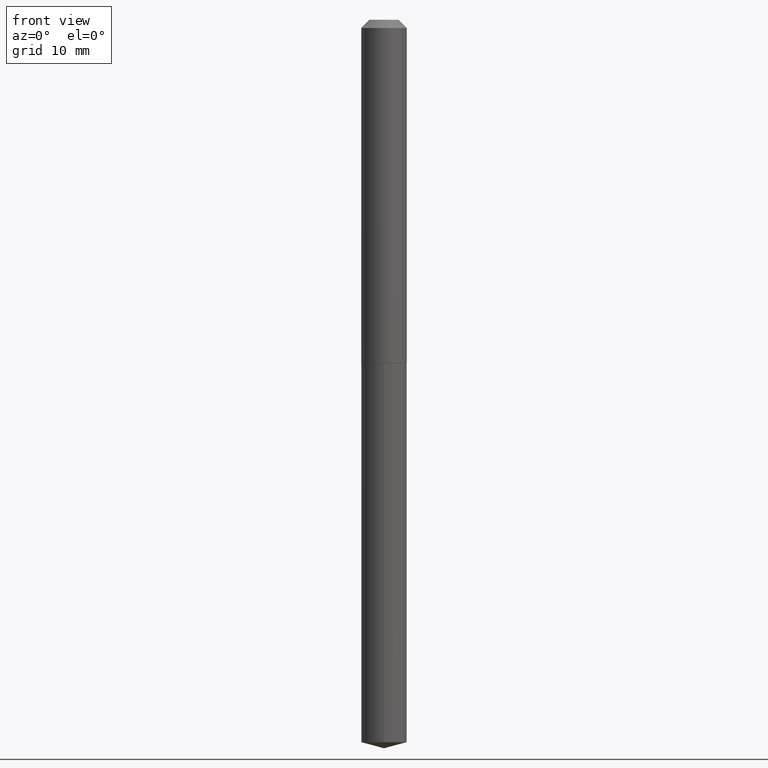
[diagram: clean part render]
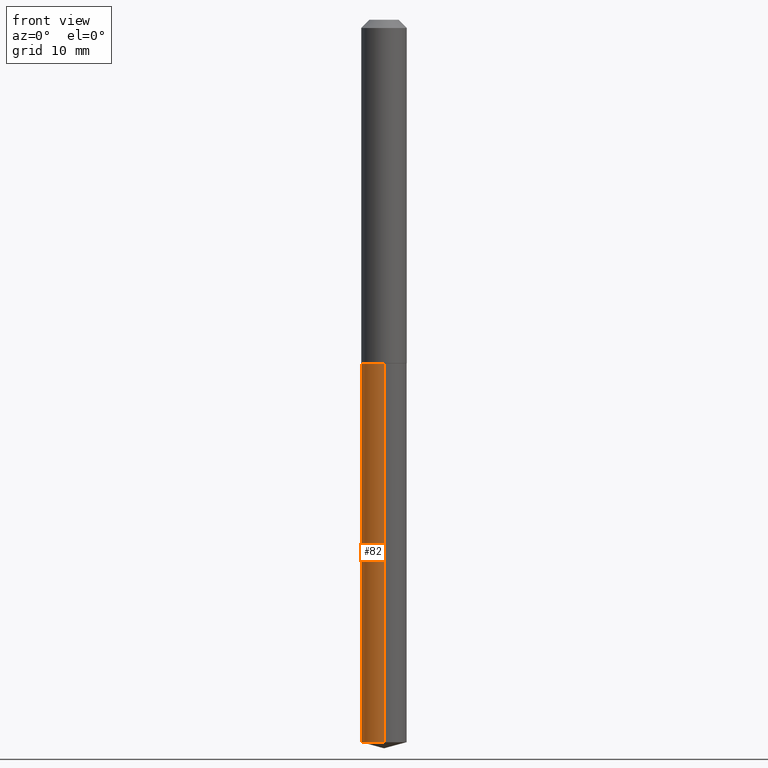
[diagram: same view with one face highlighted and labeled with its STEP entity id]
A machine part, front view. The second image highlights one B-rep face of the part: STEP entity #82.
In plain terms, the highlighted cylindrical surface (edge-blend (fillet) strip) has radius 2.1831 mm, axis along (-0, 0, 1).
Its self-contained STEP definition (entity closure, byte-faithful):
#12 = DIRECTION ( 'NONE',  ( -2.445429851158407502E-29, 3.491537124658603934E-15, 1.000000000000000000 ) ) ;
#16 = EDGE_CURVE ( 'NONE', #219, #246, #297, .T. ) ;
#26 = CARTESIAN_POINT ( 'NONE',  ( 3.171528494741502879E-29, -4.528102148345674239E-15, -1.296899999999999720 ) ) ;
#40 = EDGE_CURVE ( 'NONE', #246, #247, #227, .T. ) ;
#45 = DIRECTION ( 'NONE',  ( -6.982962677686266711E-15, -1.000000000000000000, 3.178415350394722068E-15 ) ) ;
#61 = EDGE_CURVE ( 'NONE', #129, #247, #67, .T. ) ;
#62 = DIRECTION ( 'NONE',  ( -6.982962677686266711E-15, -1.000000000000000000, 3.178415350394722068E-15 ) ) ;
#67 = CIRCLE ( 'NONE', #232, 0.08594999999999998475 ) ;
#82 = ADVANCED_FACE ( 'NONE', ( #257 ), #175, .T. ) ;
#96 = AXIS2_PLACEMENT_3D ( 'NONE', #280, #12, #279 ) ;
#100 = DIRECTION ( 'NONE',  ( -2.445429851158407502E-29, 3.491537124658603539E-15, 1.000000000000000000 ) ) ;
#129 = VERTEX_POINT ( 'NONE', #315 ) ;
#131 = DIRECTION ( 'NONE',  ( -2.445429851158407502E-29, 3.491537124658603539E-15, 1.000000000000000000 ) ) ;
#134 = ORIENTED_EDGE ( 'NONE', *, *, #16, .T. ) ;
#135 = DIRECTION ( 'NONE',  ( -2.445429851158407502E-29, 3.491537124658603934E-15, 1.000000000000000000 ) ) ;
#157 = LINE ( 'NONE', #253, #380 ) ;
#175 = CYLINDRICAL_SURFACE ( 'NONE', #379, 0.08594999999999998475 ) ;
#187 = ORIENTED_EDGE ( 'NONE', *, *, #290, .F. ) ;
#212 = CARTESIAN_POINT ( 'NONE',  ( -6.001856421471028690E-16, -0.08595000000000450890, -1.296899999999999498 ) ) ;
#214 = ORIENTED_EDGE ( 'NONE', *, *, #40, .T. ) ;
#219 = VERTEX_POINT ( 'NONE', #382 ) ;
#227 = LINE ( 'NONE', #310, #304 ) ;
#232 = AXIS2_PLACEMENT_3D ( 'NONE', #372, #135, #45 ) ;
#246 = VERTEX_POINT ( 'NONE', #293 ) ;
#247 = VERTEX_POINT ( 'NONE', #212 ) ;
#253 = CARTESIAN_POINT ( 'NONE',  ( 6.107114813858375558E-16, 0.08594999999999546059, -1.296899999999999942 ) ) ;
#257 = FACE_OUTER_BOUND ( 'NONE', #295, .T. ) ;
#271 = DIRECTION ( 'NONE',  ( -2.445429851158407502E-29, 3.491537124658603934E-15, 1.000000000000000000 ) ) ;
#279 = DIRECTION ( 'NONE',  ( -6.982962677686266711E-15, -1.000000000000000000, 6.356830700789444137E-15 ) ) ;
#280 = CARTESIAN_POINT ( 'NONE',  ( 6.668663791983697040E-29, -9.521243830365720822E-15, -2.726969766910545268 ) ) ;
#290 = EDGE_CURVE ( 'NONE', #219, #129, #157, .T. ) ;
#293 = CARTESIAN_POINT ( 'NONE',  ( -6.001856421470678633E-16, -0.08595000000000954654, -2.726969766910544823 ) ) ;
#295 = EDGE_LOOP ( 'NONE', ( #187, #134, #214, #371 ) ) ;
#297 = CIRCLE ( 'NONE', #96, 0.08594999999999998475 ) ;
#304 = VECTOR ( 'NONE', #131, 39.37007874015748143 ) ;
#310 = CARTESIAN_POINT ( 'NONE',  ( -6.001856421471028690E-16, -0.08595000000000450890, -1.296899999999999498 ) ) ;
#315 = CARTESIAN_POINT ( 'NONE',  ( 6.107114813858728573E-16, 0.08594999999999546059, -1.296899999999999942 ) ) ;
#371 = ORIENTED_EDGE ( 'NONE', *, *, #61, .F. ) ;
#372 = CARTESIAN_POINT ( 'NONE',  ( 3.171528494741502879E-29, -4.528102148345674239E-15, -1.296899999999999720 ) ) ;
#379 = AXIS2_PLACEMENT_3D ( 'NONE', #26, #271, #62 ) ;
#380 = VECTOR ( 'NONE', #100, 39.37007874015748143 ) ;
#382 = CARTESIAN_POINT ( 'NONE',  ( 6.107114813858730545E-16, 0.08594999999999047846, -2.726969766910545712 ) ) ;